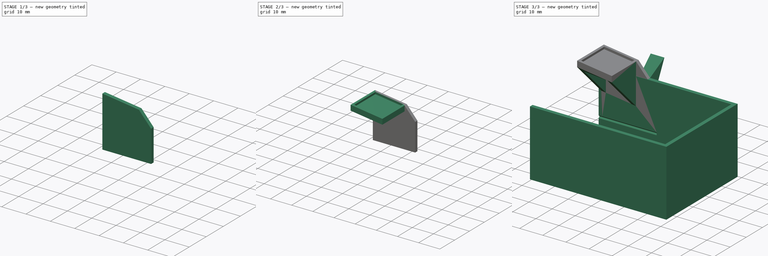
[diagram: build sequence overview — one tinted view per stage of 3, left to right]
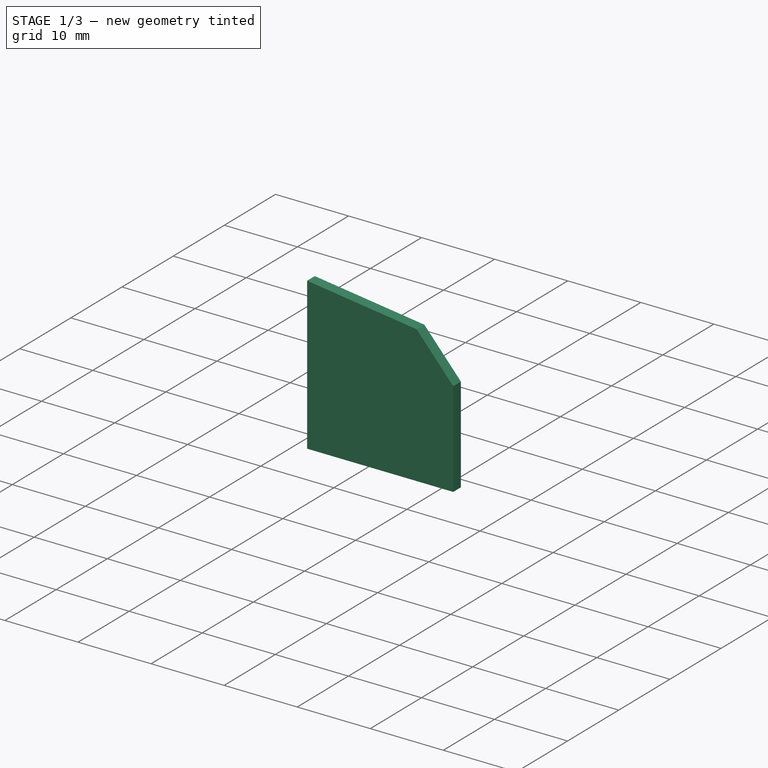
[diagram: stage 1 of 3 — iso view after this stage's code; geometry added in this stage tinted green]
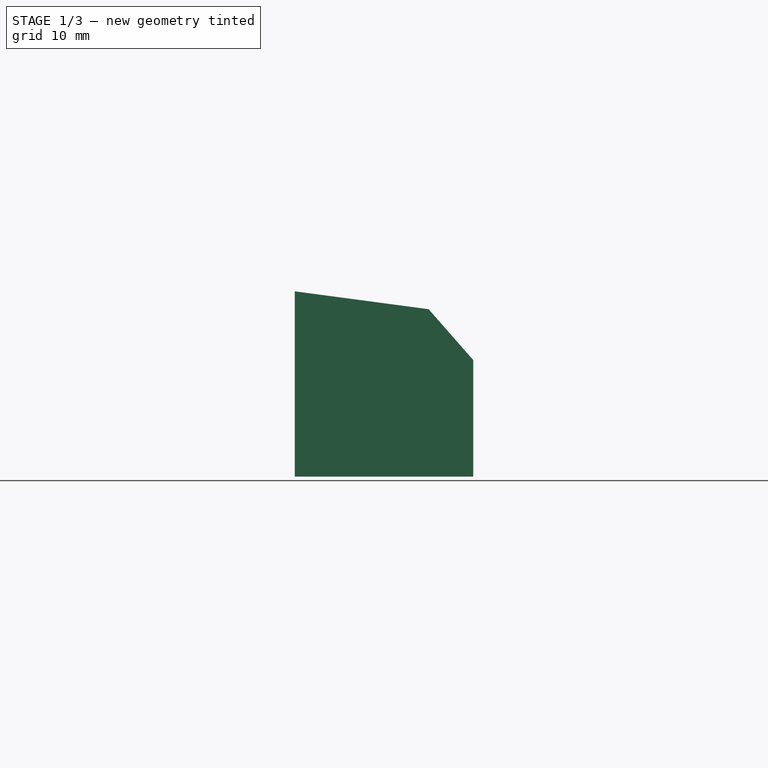
[diagram: stage 1 of 3 — front view after this stage's code; geometry added in this stage tinted green]
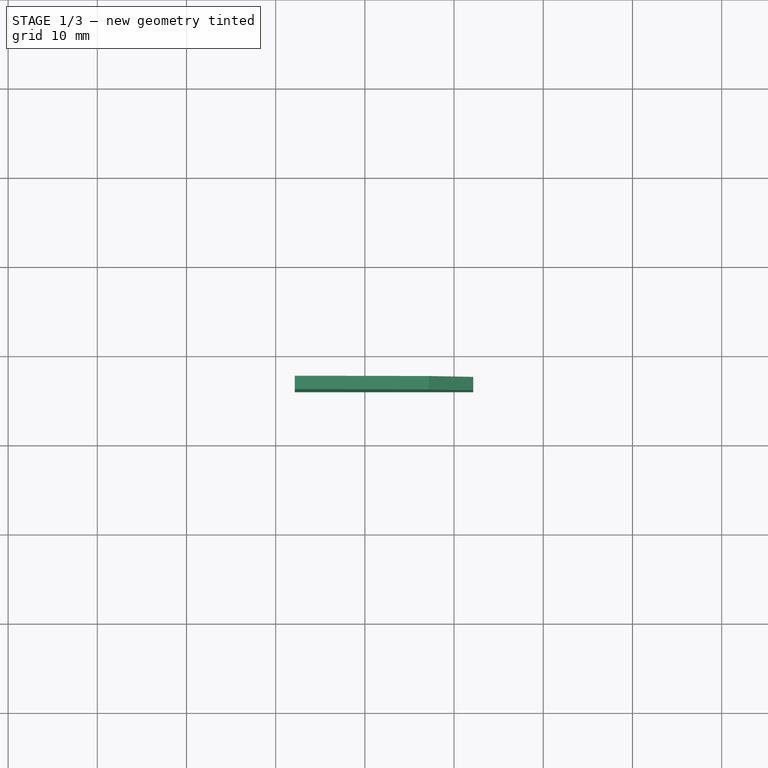
[diagram: stage 1 of 3 — top view after this stage's code; geometry added in this stage tinted green]
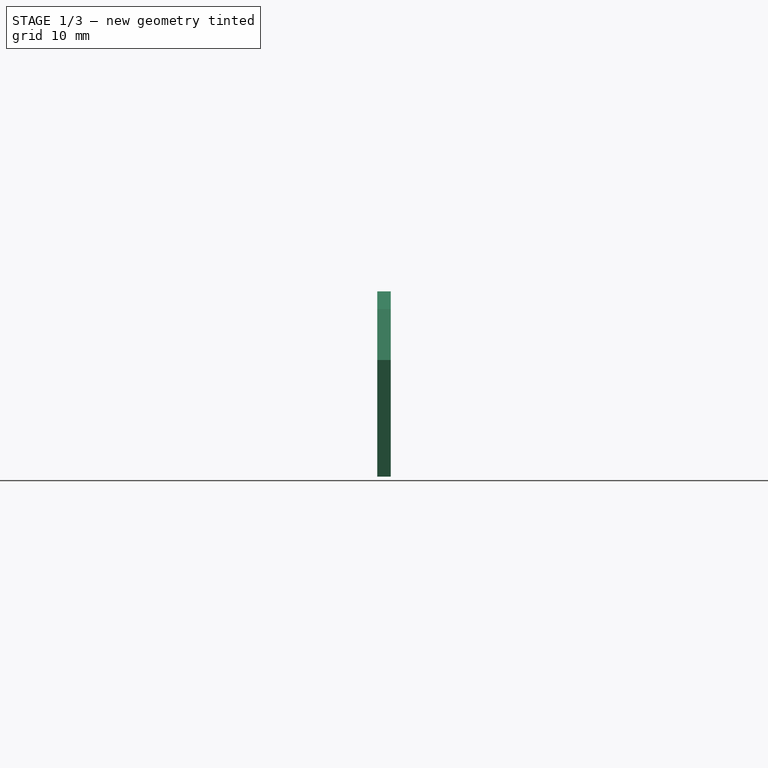
[diagram: stage 1 of 3 — right view after this stage's code; geometry added in this stage tinted green]
FCSTD DOCUMENT  (FreeCAD 2023.131R26244 +5365 (Git))
Label: silicone pad
License: All rights reserved
LicenseURL: http://en.wikipedia.org/wiki/All_rights_reserved
objects: Sketcher::SketchObject×7, PartDesign::Pad×3, PartDesign::SubShapeBinder×2, PartDesign::Body×2, PartDesign::Pocket×2, Part::Feature×1, Part::Refine×1, Part::Cut×1, PartDesign::AdditiveLoft×1, Part::MultiFuse×1
note: 40 computed .brp shape members not serialized (recipe doc carries the construction recipe); baked Part::Feature solids carry a one-line shape summary decoded from their .brp

FEATURE [Part::Feature] ArtistDPro_PurgeBucketRedesign_Bucket_22APR21001_solid  label="ArtistDPro_PurgeBucketRedesign_Bucket_22APR21001 (Solid)"
  FixShape = 1
  InvalidShape = false
  TreeRank = 3
  ValidateShape = false
  shape: bbox 59 x 51.68 x 33.75 mm, 21792 faces (baked)
FEATURE [Part::Refine] Refined  label="ArtistDPro_PurgeBucketRedesign_Bucket_22APR21001 (Solid)001"
  FixShape = 1
  InvalidShape = false
  Source = -> ArtistDPro_PurgeBucketRedesign_Bucket_22APR21001_solid
  TreeRank = 4
  ValidateShape = false
FEATURE [PartDesign::SubShapeBinder] Binder  label="Binder(ArtistDPro_PurgeBucketRedesign_Bucket_22APR21001 (Solid)001)..."
  BindCopyOnChange = 0
  BindMode = 0
  ClaimChildren = false
  Context = -> Body [Binder.]
  EdgeTolerance = 1e-06
  FillStyle = 0
  FixShape = 1
  Fuse = false
  InvalidShape = false
  MakeFace = true
  MergeEdges = true
  OffsetFill = false
  OffsetIntersection = false
  OffsetJoinType = 0
  OffsetOpenResult = false
  Outline = false
  PartialLoad = false
  Relative = true
  SplitEdges = false
  Support = -> [Refined[Edge22621,Edge22615,Edge32]]
  TightBound = false
  TreeRank = 18
  ValidateShape = false
  _Version = 8
FEATURE [Sketcher::SketchObject] Sketch
  ArcFitTolerance = 1e-06
  AttachmentSupport = -> [XY_Plane]
  ExternalBSplineMaxDegree = 5
  ExternalBSplineTolerance = 0.0001
  ExternalGeometry = -> [Binder]
  FixShape = 1
  FullyConstrained = true
  InternalTolerance = 1e-06
  InvalidShape = false
  MakeInternals = false
  MapMode = 5
  Support = -> [XY_Plane]
  TreeRank = 17
  ValidateShape = false
  sketch-geometry (4):
    g0: LineSegment StartX=-9 StartY=27.5 StartZ=0 EndX=50 EndY=27.5 EndZ=0
    g1: LineSegment StartX=50 StartY=27.5 StartZ=0 EndX=50 EndY=-16.5 EndZ=0
    g2: LineSegment StartX=50 StartY=-16.5 StartZ=0 EndX=-9 EndY=-16.5 EndZ=0
    g3: LineSegment StartX=-9 StartY=-16.5 StartZ=0 EndX=-9 EndY=27.5 EndZ=0
  constraints (10):
    c: Coincident(g0,g1)
    c: Coincident(g1,g2)
    c: Coincident(g2,g3)
    c: Coincident(g3,g0)
    c: Horizontal(g0)
    c: Horizontal(g2)
    c: Vertical(g1)
    c: Vertical(g3)
    c: Coincident(g0,g-3)
    c: Coincident(g1,g-5)
FEATURE [PartDesign::Pad] Pad
  AddSubType = 0
  AlongSketchNormal = false
  AutoTaperInnerAngle = true
  CheckUpToFaceLimits = true
  ClaimChildren = false
  Direction = (0,0,1)
  Fit = 0
  FitJoin = 0
  FixShape = 1
  InnerFit = 0
  InnerFitJoin = 0
  InvalidShape = false
  Length = 60
  Length2 = 100
  Linearize = true
  Midplane = true
  NewSolid = false
  Profile = -> Sketch
  Refine = true
  Suppress = false
  TaperInnerAngle = 0
  TaperInnerAngleRev = 0
  TreeRank = 19
  Type = 0
  ValidateShape = false
  _ProfileBasedVersion = 1
FEATURE [PartDesign::Body] Body
  AutoGroupSolids = false
  ClaimAllChildren = false
  ExportMode = 0
  FixShape = 1
  Group = -> [Sketch,Binder,Pad]
  InvalidShape = false
  Origin = -> Origin
  Tip = -> Pad
  TreeRank = 16
  ValidateShape = false
  _ExportChildren = -> [Binder,Pad]
  _GroupVersion = 1
FEATURE [Part::Cut] Cut
  Base = -> Refined
  FixShape = 1
  InvalidShape = false
  Refine = true
  Tool = -> Body
  TreeRank = 62
  ValidateShape = false
FEATURE [PartDesign::SubShapeBinder] Binder001  label="Binder001(Cut)"
  BindCopyOnChange = 0
  BindMode = 0
  ClaimChildren = false
  Context = -> Body001 [Binder001.]
  EdgeTolerance = 1e-06
  FillStyle = 0
  FixShape = 1
  Fuse = false
  InvalidShape = false
  MakeFace = true
  MergeEdges = true
  OffsetFill = false
  OffsetIntersection = false
  OffsetJoinType = 0
  OffsetOpenResult = false
  Outline = false
  PartialLoad = false
  Relative = true
  SplitEdges = false
  Support = -> [Cut]
  TightBound = false
  TreeRank = 33
  ValidateShape = false
  _Version = 8
FEATURE [Sketcher::SketchObject] Sketch001
  ArcFitTolerance = 1e-06
  AttachmentSupport = -> [Binder001]
  ExternalBSplineMaxDegree = 5
  ExternalBSplineTolerance = 0.0001
  ExternalGeometry = -> [Binder001]
  FixShape = 1
  FullyConstrained = true
  InternalTolerance = 1e-06
  InvalidShape = false
  MakeInternals = false
  MapMode = 5
  Placement = pos=(0,27.5,0) rot=(1,0,0;1.5708rad)
  Support = -> [Binder001]
  TreeRank = 34
  ValidateShape = false
  sketch-geometry (4):
    g0: LineSegment StartX=-7.85714 StartY=35.7 StartZ=0 EndX=7.14286 EndY=33.7 EndZ=0
    g1: LineSegment StartX=12.1429 StartY=28 StartZ=0 EndX=7.14286 EndY=33.7 EndZ=0
    g2: LineSegment StartX=-7.85714 StartY=35.7 StartZ=0 EndX=-7.85714 EndY=14.9217 EndZ=0
    g3: LineSegment StartX=-7.85714 StartY=14.9217 StartZ=0 EndX=7.85714 EndY=14.9217 EndZ=0
  constraints (11):
    c: DistanceY(g-3,g0) = 5.7
    c: Coincident(g1,g-3)
    c: Coincident(g1,g0)
    c: DistanceX(g0,g0) = 15
    c: DistanceX(g0,g1) = 5
    c: DistanceY(g0,g0) = 2
    c: Coincident(g0,g2)
    c: Vertical(g2)
    c: Coincident(g2,g3)
    c: Coincident(g3,g-4)
    c: Horizontal(g3)
FEATURE [PartDesign::Pad] Pad001
  AddSubType = 0
  AlongSketchNormal = false
  AutoTaperInnerAngle = true
  CheckUpToFaceLimits = true
  ClaimChildren = false
  Direction = (0,-1,2e-16)
  Fit = 0
  FitJoin = 0
  FixShape = 1
  InnerFit = 0
  InnerFitJoin = 0
  InvalidShape = false
  Length = 1.5
  Length2 = 100
  Linearize = true
  NewSolid = false
  Profile = -> Sketch001
  Refine = true
  Suppress = false
  TaperInnerAngle = 0
  TaperInnerAngleRev = 0
  TreeRank = 35
  Type = 0
  ValidateShape = false
  _ProfileBasedVersion = 1
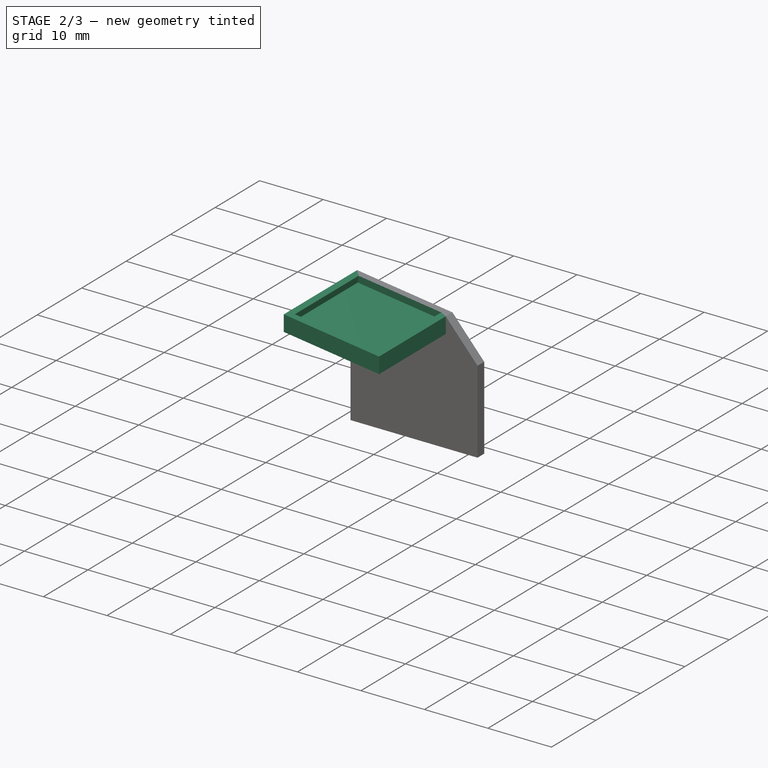
[diagram: stage 2 of 3 — iso view after this stage's code; geometry added in this stage tinted green]
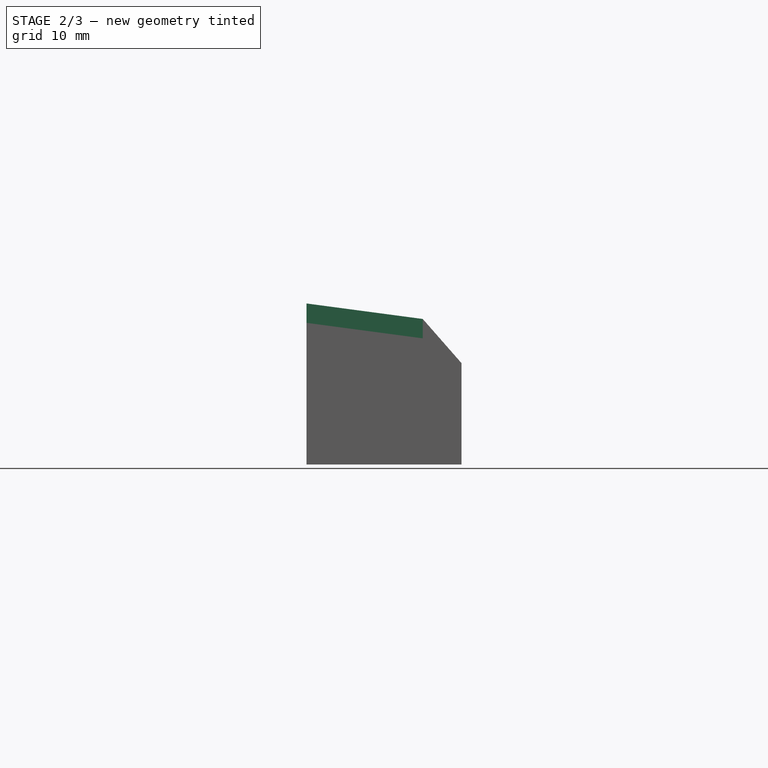
[diagram: stage 2 of 3 — front view after this stage's code; geometry added in this stage tinted green]
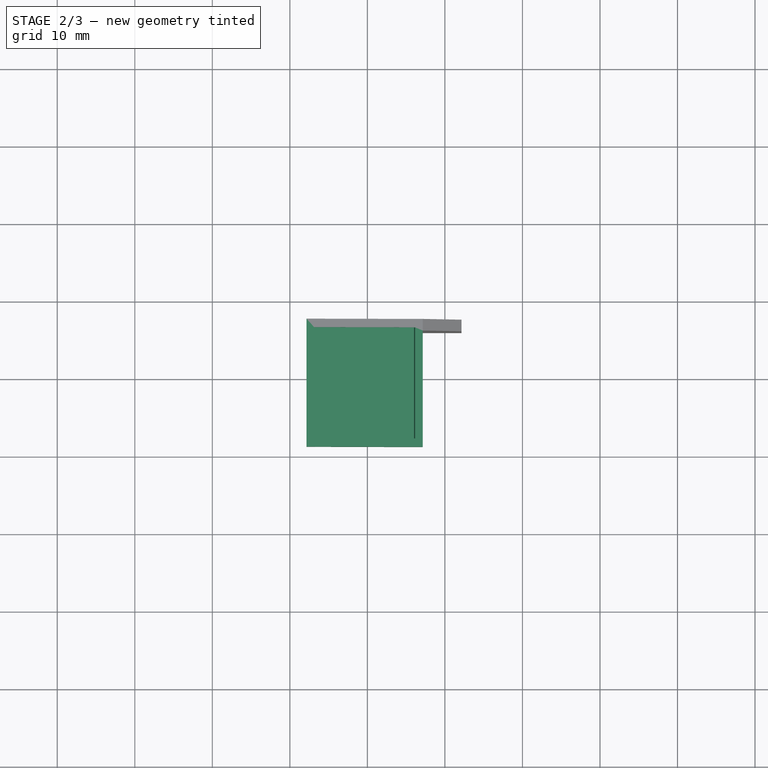
[diagram: stage 2 of 3 — top view after this stage's code; geometry added in this stage tinted green]
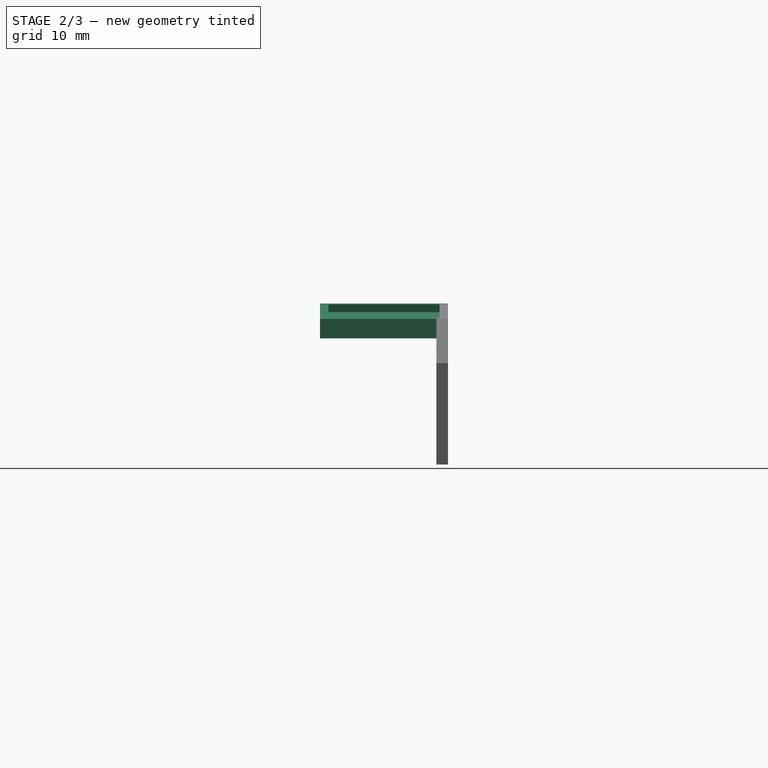
[diagram: stage 2 of 3 — right view after this stage's code; geometry added in this stage tinted green]
FEATURE [Sketcher::SketchObject] Sketch002
  ArcFitTolerance = 1e-06
  AttachmentSupport = -> [Pad001]
  ExternalBSplineMaxDegree = 5
  ExternalBSplineTolerance = 0.0001
  ExternalGeometry = -> [Sketch001]
  FixShape = 1
  FullyConstrained = true
  InternalTolerance = 1e-06
  InvalidShape = false
  MakeInternals = false
  MapMode = 5
  Placement = pos=(-8e-16,26,-4.9e-15) rot=(1,0,0;1.5708rad)
  Support = -> [Pad001]
  TreeRank = 42
  ValidateShape = false
  sketch-geometry (3):
    g0: LineSegment StartX=-7.85714 StartY=35.7 StartZ=0 EndX=-7.85714 EndY=33.2 EndZ=0
    g1: LineSegment StartX=-7.85714 StartY=33.2 StartZ=0 EndX=7.14286 EndY=31.2 EndZ=0
    g2: LineSegment StartX=7.14286 StartY=31.2 StartZ=0 EndX=7.14286 EndY=33.7 EndZ=0
  constraints (8):
    c: Coincident(g-3,g0)
    c: Vertical(g0)
    c: Coincident(g0,g1)
    c: Coincident(g1,g2)
    c: Coincident(g2,g-3)
    c: Vertical(g2)
    c: Parallel(g1,g-3)
    c: DistanceY(g2,g2) = 2.5
FEATURE [PartDesign::Pad] Pad002
  AddSubType = 0
  AlongSketchNormal = false
  AutoTaperInnerAngle = true
  BaseFeature = -> Pad001
  CheckUpToFaceLimits = true
  ClaimChildren = false
  Direction = (0,-1,2e-16)
  Fit = 0
  FitJoin = 0
  FixShape = 1
  InnerFit = 0
  InnerFitJoin = 0
  InvalidShape = false
  Length = 15
  Length2 = 100
  Linearize = true
  NewSolid = false
  Profile = -> Sketch002
  Refine = true
  Suppress = false
  TaperInnerAngle = 0
  TaperInnerAngleRev = 0
  TreeRank = 43
  Type = 0
  ValidateShape = false
  _ProfileBasedVersion = 1
FEATURE [Sketcher::SketchObject] Sketch003
  ArcFitTolerance = 1e-06
  AttachmentSupport = -> [Pad002]
  ExternalBSplineMaxDegree = 5
  ExternalBSplineTolerance = 0.0001
  ExternalGeometry = -> [Pad002]
  FixShape = 1
  FullyConstrained = true
  InternalTolerance = 1e-06
  InvalidShape = false
  MakeInternals = false
  MapMode = 5
  Placement = pos=(4.53961,7.2e-15,34.0471) rot=(0,1,0;0.132552rad)
  Support = -> [Pad002]
  TreeRank = 58
  ValidateShape = false
  sketch-geometry (6):
    g0: LineSegment StartX=1.62628 StartY=26.4096 StartZ=0 EndX=-11.5065 EndY=26.4096 EndZ=0
    g1: LineSegment StartX=-11.5065 StartY=26.4096 StartZ=0 EndX=-11.5065 EndY=12.0904 EndZ=0
    g2: LineSegment StartX=-11.5065 StartY=12.0904 StartZ=0 EndX=1.62628 EndY=12.0904 EndZ=0
    g3: LineSegment StartX=1.62628 StartY=12.0904 StartZ=0 EndX=1.62628 EndY=26.4096 EndZ=0
    g4: LineSegment [constr] StartX=2.62628 StartY=27.5 StartZ=0 EndX=-4.94009 EndY=19.25 EndZ=0
    g5: LineSegment [constr] StartX=-4.94009 StartY=19.25 StartZ=0 EndX=-12.5065 EndY=11 EndZ=0
  constraints (18):
    c: Coincident(g0,g1)
    c: Coincident(g1,g2)
    c: Coincident(g2,g3)
    c: Coincident(g3,g0)
    c: Horizontal(g0)
    c: Horizontal(g2)
    c: Vertical(g1)
    c: Vertical(g3)
    c: Coincident(g4,g-3)
    c: Coincident(g5,g4)
    c: Coincident(g5,g-4)
    c: Equal(g4,g5)
    c: Parallel(g4,g5)
    c: PointOnObject(g1,g5)
    c: Symmetric(g1,g0,g4)
    c: DistanceX(g2,g2) = -13.1327
    c: DistanceY(g3,g3) = 14.3193
    c: DistanceX(g-4,g1) = 1
FEATURE [PartDesign::Pocket] Pocket
  AddSubType = 1
  AutoTaperInnerAngle = true
  BaseFeature = -> Pad002
  CheckUpToFaceLimits = true
  ClaimChildren = false
  Fit = 0
  FitJoin = 0
  FixShape = 1
  InnerFit = 0
  InnerFitJoin = 0
  InvalidShape = false
  Length = 1
  Length2 = 100
  Linearize = true
  NewSolid = false
  Profile = -> Sketch003
  Refine = true
  Suppress = false
  TaperInnerAngle = 0
  TaperInnerAngleRev = 0
  TreeRank = 59
  Type = 0
  ValidateShape = false
  _ProfileBasedVersion = 1
  _Version = 1
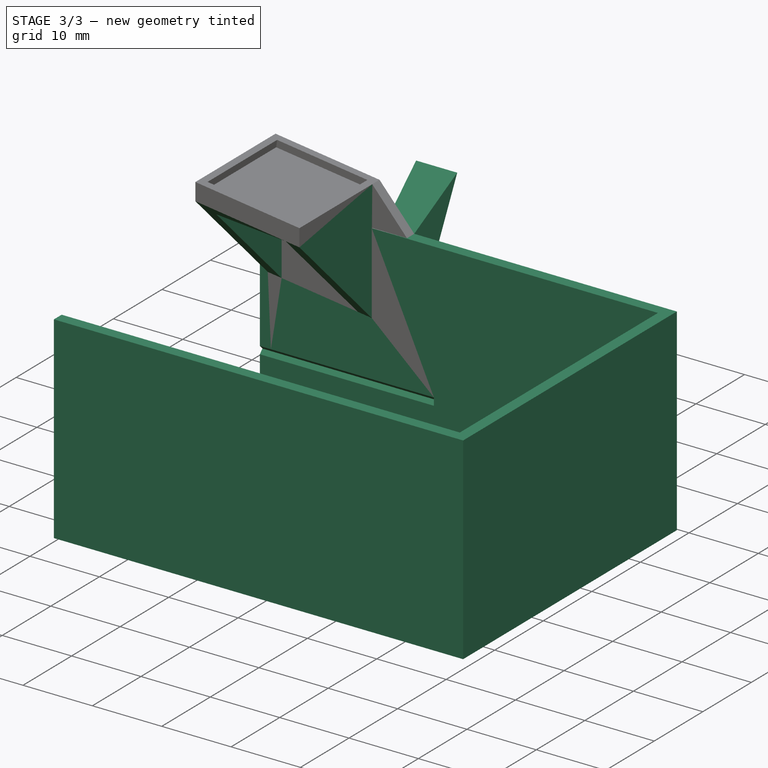
[diagram: stage 3 of 3 — iso view after this stage's code; geometry added in this stage tinted green]
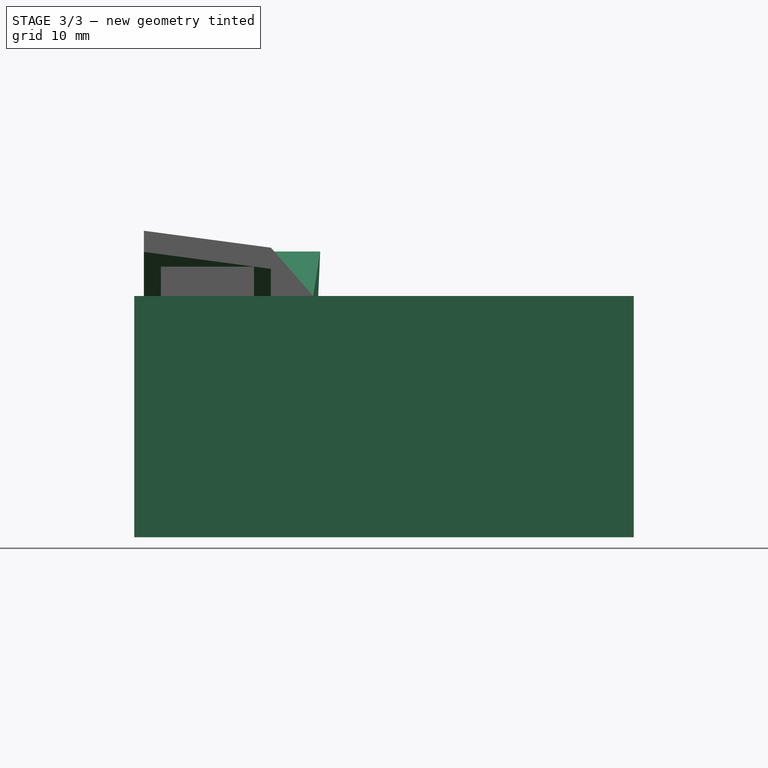
[diagram: stage 3 of 3 — front view after this stage's code; geometry added in this stage tinted green]
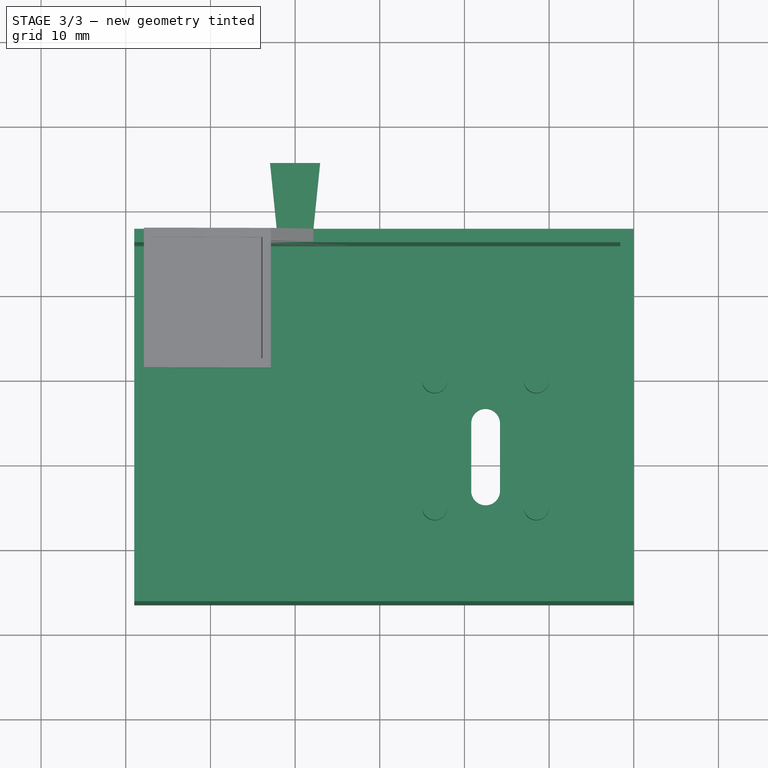
[diagram: stage 3 of 3 — top view after this stage's code; geometry added in this stage tinted green]
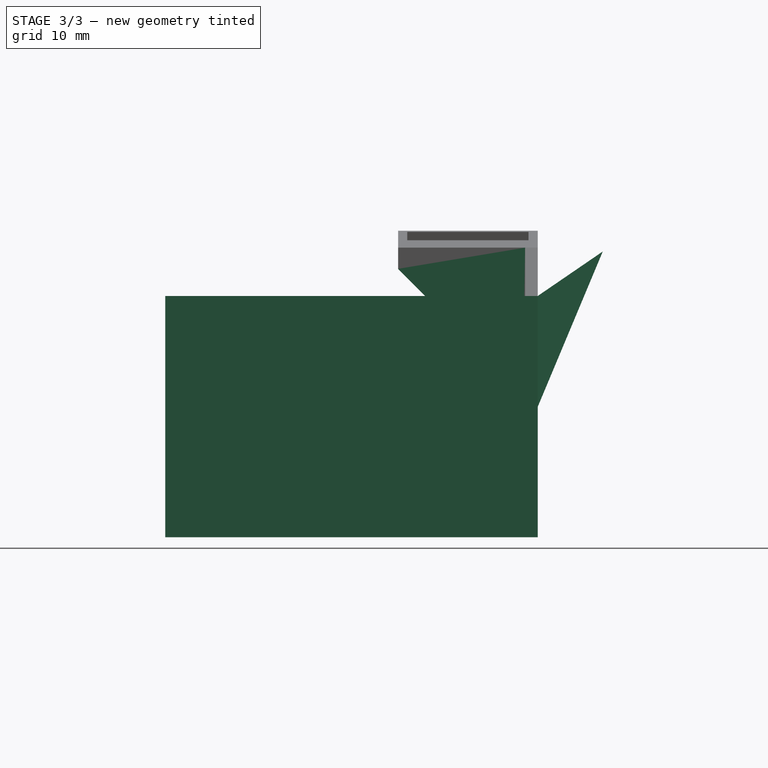
[diagram: stage 3 of 3 — right view after this stage's code; geometry added in this stage tinted green]
FEATURE [Sketcher::SketchObject] Sketch004
  ArcFitTolerance = 1e-06
  AttachmentSupport = -> [Pocket]
  ExternalBSplineMaxDegree = 5
  ExternalBSplineTolerance = 0.0001
  ExternalGeometry = -> [Pocket]
  FixShape = 1
  FullyConstrained = true
  InternalTolerance = 1e-06
  InvalidShape = false
  MakeInternals = false
  MapMode = 5
  Placement = pos=(7.14286,2e-16,0) rot=(0.57735,0.57735,0.57735;2.0944rad)
  Support = -> [Pocket]
  TreeRank = 64
  ValidateShape = false
  sketch-geometry (3):
    g0: LineSegment StartX=26 StartY=31.2 StartZ=0 EndX=11 EndY=31.2 EndZ=0
    g1: LineSegment StartX=11 StartY=31.2 StartZ=0 EndX=26 EndY=16.2 EndZ=0
    g2: LineSegment StartX=26 StartY=16.2 StartZ=0 EndX=26 EndY=31.2 EndZ=0
  constraints (7):
    c: Coincident(g0,g1)
    c: Coincident(g2,g1)
    c: Coincident(g2,g0)
    c: Vertical(g2)
    c: Angle(g1) = -0.785398
    c: Coincident(g0,g-3)
    c: Coincident(g0,g-3)
FEATURE [Sketcher::SketchObject] Sketch005
  ArcFitTolerance = 1e-06
  AttachmentSupport = -> [Pocket]
  ExternalBSplineMaxDegree = 5
  ExternalBSplineTolerance = 0.0001
  ExternalGeometry = -> [Pocket]
  FixShape = 1
  FullyConstrained = true
  InternalTolerance = 1e-06
  InvalidShape = false
  MakeInternals = false
  MapMode = 5
  Placement = pos=(-7.85714,-4e-16,0) rot=(0.57735,0.57735,0.57735;2.0944rad)
  Support = -> [Pocket]
  TreeRank = 65
  ValidateShape = false
  sketch-geometry (2):
    g0: LineSegment StartX=26 StartY=33.2 StartZ=0 EndX=26 EndY=18.2 EndZ=0
    g1: LineSegment StartX=26 StartY=18.2 StartZ=0 EndX=11 EndY=33.2 EndZ=0
  constraints (5):
    c: Coincident(g0,g-3)
    c: Vertical(g0)
    c: Coincident(g1,g0)
    c: Coincident(g1,g-3)
    c: Angle(g1) = 2.35619
FEATURE [PartDesign::AdditiveLoft] Loft
  AddSubType = 0
  BaseFeature = -> Pocket
  ClaimChildren = false
  Closed = false
  Fit = 0
  FitJoin = 0
  FixShape = 1
  InnerFit = 0
  InnerFitJoin = 0
  InvalidShape = false
  Linearize = true
  NewSolid = false
  Profile = -> Sketch004
  Refine = true
  Ruled = false
  Sections = -> [Sketch005]
  SplitProfile = false
  Suppress = false
  TreeRank = 66
  ValidateShape = false
  _ProfileBasedVersion = 1
FEATURE [Sketcher::SketchObject] Sketch006
  ArcFitTolerance = 1e-06
  AttachmentSupport = -> [Loft]
  ExternalBSplineMaxDegree = 5
  ExternalBSplineTolerance = 0.0001
  ExternalGeometry = -> [Loft]
  FixShape = 1
  FullyConstrained = true
  InternalTolerance = 1e-06
  InvalidShape = false
  MakeInternals = false
  MapMode = 5
  Placement = pos=(0,11,0) rot=(1,0,0;1.5708rad)
  Support = -> [Loft]
  TreeRank = 67
  ValidateShape = false
  sketch-geometry (4):
    g0: LineSegment StartX=5.14286 StartY=31.4667 StartZ=0 EndX=5.14286 EndY=16.4667 EndZ=0
    g1: LineSegment StartX=5.14286 StartY=16.4667 StartZ=0 EndX=-5.85714 EndY=17.9333 EndZ=0
    g2: LineSegment StartX=-5.85714 StartY=17.9333 StartZ=0 EndX=-5.85714 EndY=31.4667 EndZ=0
    g3: LineSegment StartX=-5.85714 StartY=31.4667 StartZ=0 EndX=5.14286 EndY=31.4667 EndZ=0
  constraints (12):
    c: PointOnObject(g0,g-3)
    c: Vertical(g0)
    c: Coincident(g0,g1)
    c: PointOnObject(g0,g-4)
    c: PointOnObject(g1,g-4)
    c: DistanceX(g0,g-3) = 2
    c: Coincident(g2,g1)
    c: Vertical(g2)
    c: Coincident(g3,g2)
    c: Coincident(g3,g0)
    c: Horizontal(g3)
    c: DistanceX(g-3,g2) = 2
FEATURE [PartDesign::Pocket] Pocket001
  AddSubType = 1
  AutoTaperInnerAngle = true
  BaseFeature = -> Loft
  CheckUpToFaceLimits = true
  ClaimChildren = false
  Fit = 0
  FitJoin = 0
  FixShape = 1
  InnerFit = 0
  InnerFitJoin = 0
  InvalidShape = false
  Length = 0
  Length2 = 100
  Linearize = true
  NewSolid = false
  Profile = -> Sketch006
  Refine = true
  Suppress = false
  TaperInnerAngle = 0
  TaperInnerAngleRev = 0
  TreeRank = 68
  Type = 3
  UpToFace = -> Loft [Face5]
  ValidateShape = false
  _ProfileBasedVersion = 1
  _Version = 1
FEATURE [PartDesign::Body] Body001  label="silicon pad support"
  AutoGroupSolids = false
  ClaimAllChildren = false
  ExportMode = 0
  FixShape = 1
  Group = -> [Binder001,Sketch001,Pad001,Sketch002,Pad002,Sketch003,Pocket,Sketch004,Sketch005,Loft,Sketch006,Pocket001]
  InvalidShape = false
  Origin = -> Origin001
  Tip = -> Pocket001
  TreeRank = 69
  ValidateShape = false
  _ExportChildren = -> [Binder001,Pad001,Pad002,Pocket,Loft,Pocket001]
  _GroupVersion = 1
FEATURE [Part::MultiFuse] Fusion
  FixShape = 1
  InvalidShape = false
  Refine = true
  Shapes = -> [Refined,Body001]
  TreeRank = 70
  ValidateShape = false
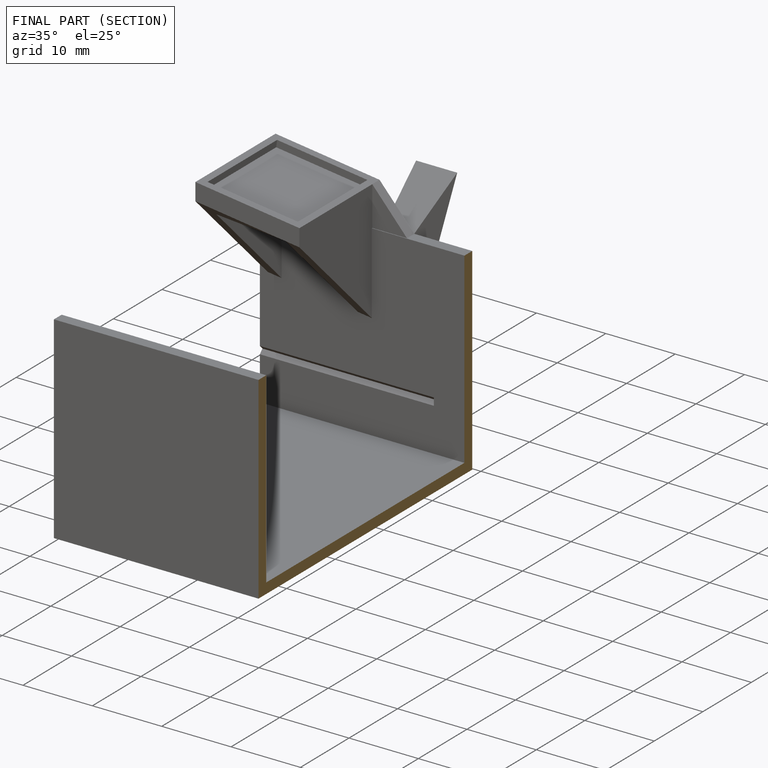
[diagram: finished part — half-section view (interior)]
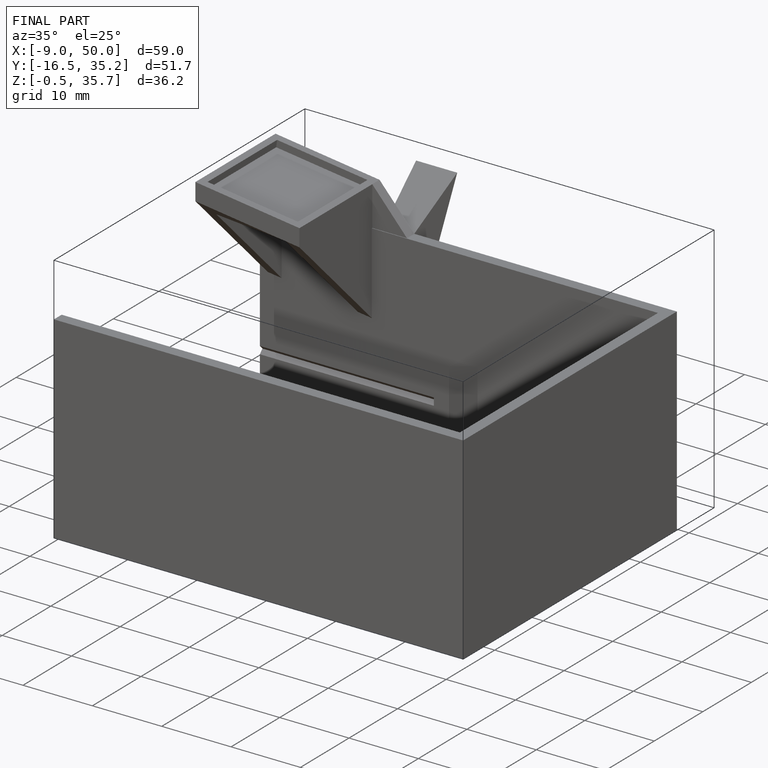
[diagram: finished part — iso view with bounding-box wireframe]
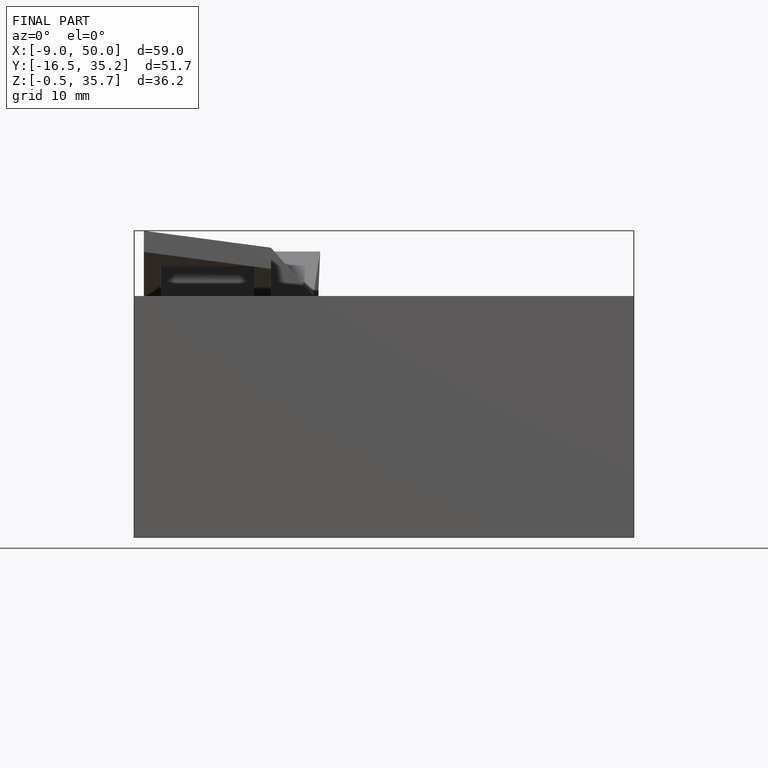
[diagram: finished part — front view with bounding-box wireframe]
